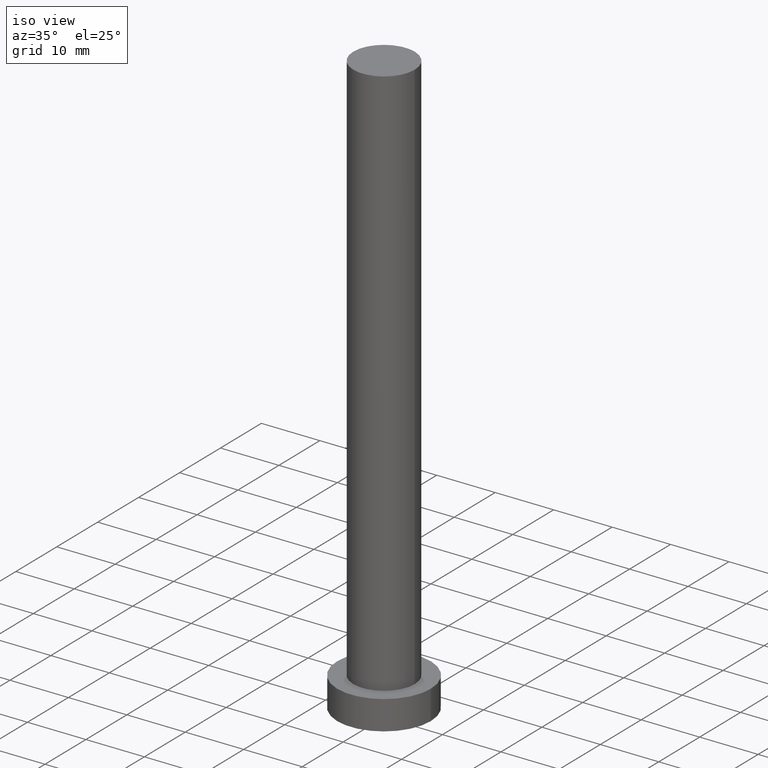
[diagram: clean part render]
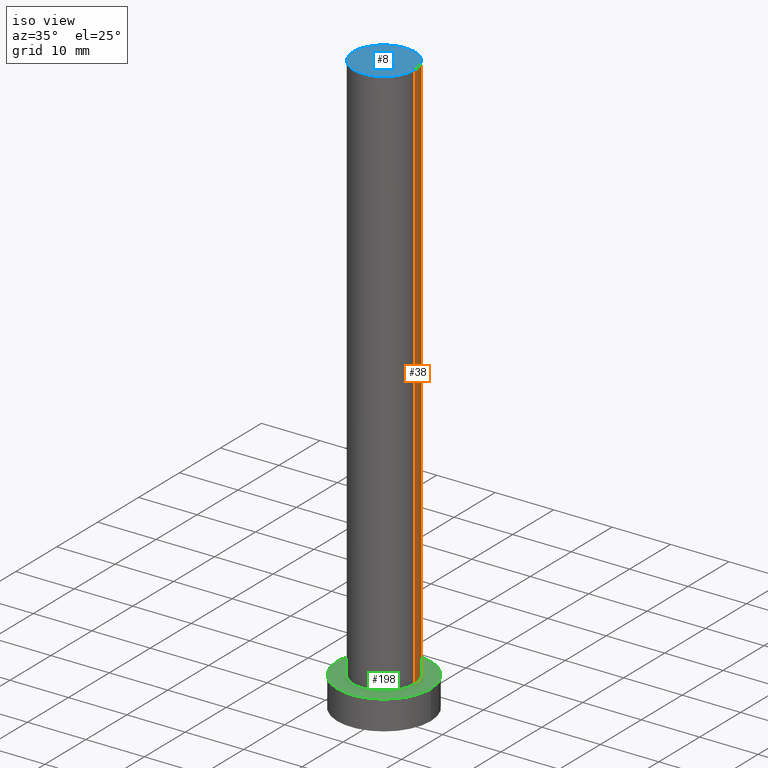
[diagram: same view with three faces highlighted in distinct colors, each labeled with its STEP entity id]
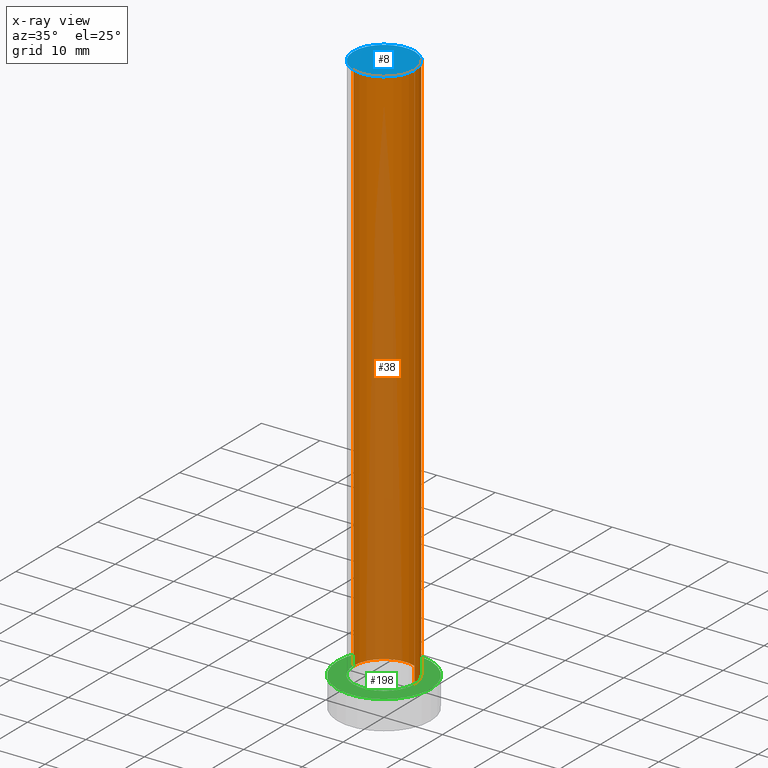
[diagram: x-ray of the same camera — body ghosted, the three highlighted faces saturated]
A machine part, iso view with three faces highlighted in distinct colors.
The next image is the same camera in x-ray (body ghosted, the three faces saturated) — at least one of them is partly hidden behind the body in this view.
Their STEP definitions:

[orange] entity #38 — the highlighted cylindrical surface (partial cylindrical patch) has radius 5.25 mm, axis along (-0, -0, -1).
#1 = CARTESIAN_POINT ( 'NONE',  ( 5.250000000000000000, 6.429395695523604153E-16, 100.0000000000000000 ) ) ;
#31 = DIRECTION ( 'NONE',  ( -0.000000000000000000, -0.000000000000000000, -1.000000000000000000 ) ) ;
#34 = CARTESIAN_POINT ( 'NONE',  ( 0.000000000000000000, 0.000000000000000000, 100.0000000000000000 ) ) ;
#36 = DIRECTION ( 'NONE',  ( -0.000000000000000000, -0.000000000000000000, -1.000000000000000000 ) ) ;
#38 = ADVANCED_FACE ( 'NONE', ( #232 ), #87, .T. ) ;
#50 = VECTOR ( 'NONE', #31, 1000.000000000000000 ) ;
#52 = EDGE_LOOP ( 'NONE', ( #242, #146, #162, #102 ) ) ;
#55 = CARTESIAN_POINT ( 'NONE',  ( -5.250000000000000000, 0.000000000000000000, 100.0000000000000000 ) ) ;
#65 = VERTEX_POINT ( 'NONE', #55 ) ;
#68 = DIRECTION ( 'NONE',  ( -0.000000000000000000, -0.000000000000000000, -1.000000000000000000 ) ) ;
#69 = DIRECTION ( 'NONE',  ( 0.000000000000000000, 0.000000000000000000, 1.000000000000000000 ) ) ;
#75 = CARTESIAN_POINT ( 'NONE',  ( 5.250000000000000000, 6.429395695523604153E-16, 5.000000000000000000 ) ) ;
#87 = CYLINDRICAL_SURFACE ( 'NONE', #143, 5.250000000000000000 ) ;
#89 = EDGE_CURVE ( 'NONE', #250, #225, #147, .T. ) ;
#100 = AXIS2_PLACEMENT_3D ( 'NONE', #239, #235, #215 ) ;
#102 = ORIENTED_EDGE ( 'NONE', *, *, #145, .F. ) ;
#108 = AXIS2_PLACEMENT_3D ( 'NONE', #128, #69, #109 ) ;
#109 = DIRECTION ( 'NONE',  ( 1.000000000000000000, 0.000000000000000000, 0.000000000000000000 ) ) ;
#128 = CARTESIAN_POINT ( 'NONE',  ( 0.000000000000000000, 0.000000000000000000, 100.0000000000000000 ) ) ;
#132 = EDGE_CURVE ( 'NONE', #250, #65, #153, .T. ) ;
#134 = CARTESIAN_POINT ( 'NONE',  ( -5.250000000000000000, 0.000000000000000000, 5.000000000000000000 ) ) ;
#136 = CIRCLE ( 'NONE', #100, 5.250000000000000000 ) ;
#140 = VERTEX_POINT ( 'NONE', #134 ) ;
#143 = AXIS2_PLACEMENT_3D ( 'NONE', #34, #68, #251 ) ;
#145 = EDGE_CURVE ( 'NONE', #65, #140, #254, .T. ) ;
#146 = ORIENTED_EDGE ( 'NONE', *, *, #89, .T. ) ;
#147 = LINE ( 'NONE', #231, #248 ) ;
#148 = CARTESIAN_POINT ( 'NONE',  ( -5.250000000000000000, 0.000000000000000000, 100.0000000000000000 ) ) ;
#153 = CIRCLE ( 'NONE', #108, 5.250000000000000000 ) ;
#162 = ORIENTED_EDGE ( 'NONE', *, *, #200, .T. ) ;
#200 = EDGE_CURVE ( 'NONE', #225, #140, #136, .T. ) ;
#215 = DIRECTION ( 'NONE',  ( 1.000000000000000000, 0.000000000000000000, 0.000000000000000000 ) ) ;
#225 = VERTEX_POINT ( 'NONE', #75 ) ;
#231 = CARTESIAN_POINT ( 'NONE',  ( 5.250000000000000000, 6.429395695523604153E-16, 100.0000000000000000 ) ) ;
#232 = FACE_OUTER_BOUND ( 'NONE', #52, .T. ) ;
#235 = DIRECTION ( 'NONE',  ( 0.000000000000000000, 0.000000000000000000, 1.000000000000000000 ) ) ;
#239 = CARTESIAN_POINT ( 'NONE',  ( 0.000000000000000000, 0.000000000000000000, 5.000000000000000000 ) ) ;
#242 = ORIENTED_EDGE ( 'NONE', *, *, #132, .F. ) ;
#248 = VECTOR ( 'NONE', #36, 1000.000000000000000 ) ;
#250 = VERTEX_POINT ( 'NONE', #1 ) ;
#251 = DIRECTION ( 'NONE',  ( -1.000000000000000000, 0.000000000000000000, 0.000000000000000000 ) ) ;
#254 = LINE ( 'NONE', #148, #50 ) ;

[blue] entity #8 — the highlighted planar face has unit normal (0, 0, 1).
#1 = CARTESIAN_POINT ( 'NONE',  ( 5.250000000000000000, 6.429395695523604153E-16, 100.0000000000000000 ) ) ;
#5 = AXIS2_PLACEMENT_3D ( 'NONE', #173, #131, #208 ) ;
#7 = ORIENTED_EDGE ( 'NONE', *, *, #126, .T. ) ;
#8 = ADVANCED_FACE ( 'NONE', ( #90 ), #56, .T. ) ;
#28 = EDGE_LOOP ( 'NONE', ( #7, #163 ) ) ;
#55 = CARTESIAN_POINT ( 'NONE',  ( -5.250000000000000000, 0.000000000000000000, 100.0000000000000000 ) ) ;
#56 = PLANE ( 'NONE',  #5 ) ;
#65 = VERTEX_POINT ( 'NONE', #55 ) ;
#69 = DIRECTION ( 'NONE',  ( 0.000000000000000000, 0.000000000000000000, 1.000000000000000000 ) ) ;
#86 = DIRECTION ( 'NONE',  ( 0.000000000000000000, 0.000000000000000000, 1.000000000000000000 ) ) ;
#90 = FACE_OUTER_BOUND ( 'NONE', #28, .T. ) ;
#96 = CIRCLE ( 'NONE', #164, 5.250000000000000000 ) ;
#108 = AXIS2_PLACEMENT_3D ( 'NONE', #128, #69, #109 ) ;
#109 = DIRECTION ( 'NONE',  ( 1.000000000000000000, 0.000000000000000000, 0.000000000000000000 ) ) ;
#112 = DIRECTION ( 'NONE',  ( 1.000000000000000000, 0.000000000000000000, 0.000000000000000000 ) ) ;
#126 = EDGE_CURVE ( 'NONE', #65, #250, #96, .T. ) ;
#128 = CARTESIAN_POINT ( 'NONE',  ( 0.000000000000000000, 0.000000000000000000, 100.0000000000000000 ) ) ;
#131 = DIRECTION ( 'NONE',  ( 0.000000000000000000, 0.000000000000000000, 1.000000000000000000 ) ) ;
#132 = EDGE_CURVE ( 'NONE', #250, #65, #153, .T. ) ;
#153 = CIRCLE ( 'NONE', #108, 5.250000000000000000 ) ;
#163 = ORIENTED_EDGE ( 'NONE', *, *, #132, .T. ) ;
#164 = AXIS2_PLACEMENT_3D ( 'NONE', #171, #86, #112 ) ;
#171 = CARTESIAN_POINT ( 'NONE',  ( 0.000000000000000000, 0.000000000000000000, 100.0000000000000000 ) ) ;
#173 = CARTESIAN_POINT ( 'NONE',  ( 0.000000000000000000, 0.000000000000000000, 100.0000000000000000 ) ) ;
#208 = DIRECTION ( 'NONE',  ( 1.000000000000000000, 0.000000000000000000, -0.000000000000000000 ) ) ;
#250 = VERTEX_POINT ( 'NONE', #1 ) ;

[green] entity #198 — the highlighted planar face has unit normal (0, 0, 1).
#4 = DIRECTION ( 'NONE',  ( 1.000000000000000000, 0.000000000000000000, 0.000000000000000000 ) ) ;
#14 = DIRECTION ( 'NONE',  ( 1.000000000000000000, 0.000000000000000000, 0.000000000000000000 ) ) ;
#16 = CARTESIAN_POINT ( 'NONE',  ( -8.000000000000000000, 0.000000000000000000, 5.000000000000000000 ) ) ;
#20 = PLANE ( 'NONE',  #214 ) ;
#26 = VERTEX_POINT ( 'NONE', #16 ) ;
#42 = CIRCLE ( 'NONE', #180, 8.000000000000000000 ) ;
#51 = AXIS2_PLACEMENT_3D ( 'NONE', #241, #159, #4 ) ;
#59 = AXIS2_PLACEMENT_3D ( 'NONE', #211, #193, #14 ) ;
#60 = EDGE_CURVE ( 'NONE', #26, #201, #97, .T. ) ;
#73 = CARTESIAN_POINT ( 'NONE',  ( 0.000000000000000000, 0.000000000000000000, 5.000000000000000000 ) ) ;
#75 = CARTESIAN_POINT ( 'NONE',  ( 5.250000000000000000, 6.429395695523604153E-16, 5.000000000000000000 ) ) ;
#81 = ORIENTED_EDGE ( 'NONE', *, *, #236, .F. ) ;
#83 = ORIENTED_EDGE ( 'NONE', *, *, #149, .T. ) ;
#88 = CIRCLE ( 'NONE', #51, 5.250000000000000000 ) ;
#91 = CARTESIAN_POINT ( 'NONE',  ( 0.000000000000000000, 0.000000000000000000, 5.000000000000000000 ) ) ;
#97 = CIRCLE ( 'NONE', #59, 8.000000000000000000 ) ;
#100 = AXIS2_PLACEMENT_3D ( 'NONE', #239, #235, #215 ) ;
#111 = DIRECTION ( 'NONE',  ( 1.000000000000000000, 0.000000000000000000, 0.000000000000000000 ) ) ;
#116 = DIRECTION ( 'NONE',  ( 1.000000000000000000, 0.000000000000000000, -0.000000000000000000 ) ) ;
#118 = DIRECTION ( 'NONE',  ( 0.000000000000000000, 0.000000000000000000, 1.000000000000000000 ) ) ;
#119 = CARTESIAN_POINT ( 'NONE',  ( 8.000000000000000000, 9.797174393178825657E-16, 5.000000000000000000 ) ) ;
#124 = EDGE_LOOP ( 'NONE', ( #81, #247 ) ) ;
#134 = CARTESIAN_POINT ( 'NONE',  ( -5.250000000000000000, 0.000000000000000000, 5.000000000000000000 ) ) ;
#136 = CIRCLE ( 'NONE', #100, 5.250000000000000000 ) ;
#140 = VERTEX_POINT ( 'NONE', #134 ) ;
#142 = EDGE_LOOP ( 'NONE', ( #183, #83 ) ) ;
#149 = EDGE_CURVE ( 'NONE', #201, #26, #42, .T. ) ;
#159 = DIRECTION ( 'NONE',  ( 0.000000000000000000, 0.000000000000000000, 1.000000000000000000 ) ) ;
#174 = FACE_OUTER_BOUND ( 'NONE', #142, .T. ) ;
#180 = AXIS2_PLACEMENT_3D ( 'NONE', #73, #189, #111 ) ;
#183 = ORIENTED_EDGE ( 'NONE', *, *, #60, .T. ) ;
#189 = DIRECTION ( 'NONE',  ( 0.000000000000000000, 0.000000000000000000, 1.000000000000000000 ) ) ;
#193 = DIRECTION ( 'NONE',  ( 0.000000000000000000, 0.000000000000000000, 1.000000000000000000 ) ) ;
#198 = ADVANCED_FACE ( 'NONE', ( #205, #174 ), #20, .T. ) ;
#200 = EDGE_CURVE ( 'NONE', #225, #140, #136, .T. ) ;
#201 = VERTEX_POINT ( 'NONE', #119 ) ;
#205 = FACE_BOUND ( 'NONE', #124, .T. ) ;
#211 = CARTESIAN_POINT ( 'NONE',  ( 0.000000000000000000, 0.000000000000000000, 5.000000000000000000 ) ) ;
#214 = AXIS2_PLACEMENT_3D ( 'NONE', #91, #118, #116 ) ;
#215 = DIRECTION ( 'NONE',  ( 1.000000000000000000, 0.000000000000000000, 0.000000000000000000 ) ) ;
#225 = VERTEX_POINT ( 'NONE', #75 ) ;
#235 = DIRECTION ( 'NONE',  ( 0.000000000000000000, 0.000000000000000000, 1.000000000000000000 ) ) ;
#236 = EDGE_CURVE ( 'NONE', #140, #225, #88, .T. ) ;
#239 = CARTESIAN_POINT ( 'NONE',  ( 0.000000000000000000, 0.000000000000000000, 5.000000000000000000 ) ) ;
#241 = CARTESIAN_POINT ( 'NONE',  ( 0.000000000000000000, 0.000000000000000000, 5.000000000000000000 ) ) ;
#247 = ORIENTED_EDGE ( 'NONE', *, *, #200, .F. ) ;